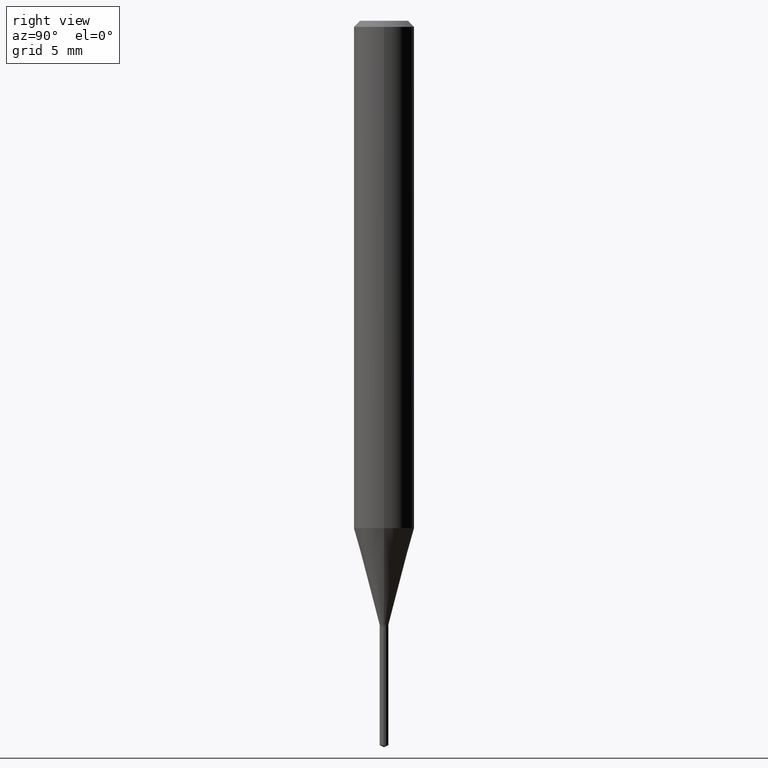
[diagram: clean part render]
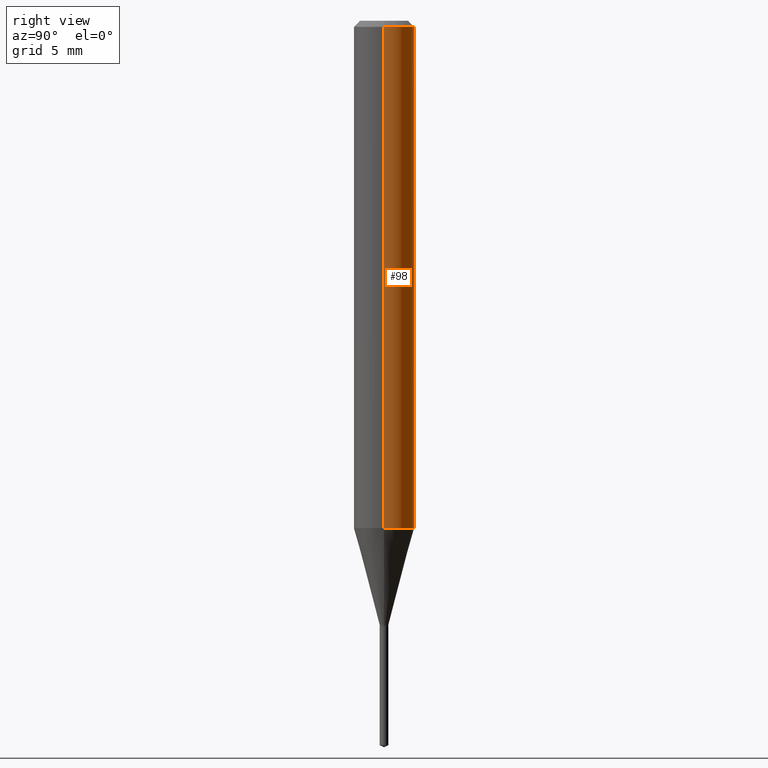
[diagram: same view with one face highlighted and labeled with its STEP entity id]
A machine part, right view. The second image highlights one B-rep face of the part: STEP entity #98.
In plain terms, the highlighted cylindrical surface (edge-blend (fillet) strip) has radius 1.5875 mm, axis along (-0, 0, 1).
Its self-contained STEP definition (entity closure, byte-faithful):
#1 = DIRECTION ( 'NONE',  ( -2.445468806185136877E-29, 3.491481338843145188E-15, 1.000000000000000000 ) ) ;
#8 = ORIENTED_EDGE ( 'NONE', *, *, #24, .F. ) ;
#17 = CARTESIAN_POINT ( 'NONE',  ( 0.06250000000000006939, -4.364351673553921624E-16, 3.047610484872463374E-30 ) ) ;
#19 = CARTESIAN_POINT ( 'NONE',  ( -0.06250000000000013878, -3.213709826451086703E-15, -1.047635281795065154 ) ) ;
#24 = EDGE_CURVE ( 'NONE', #99, #175, #193, .T. ) ;
#29 = CARTESIAN_POINT ( 'NONE',  ( 2.561959401888807010E-29, -3.657799036301150108E-15, -1.047635281795065154 ) ) ;
#38 = CARTESIAN_POINT ( 'NONE',  ( -0.06250000000000006939, 4.440892098500631092E-16, -3.074334431409319267E-30 ) ) ;
#41 = EDGE_CURVE ( 'NONE', #216, #99, #295, .T. ) ;
#60 = DIRECTION ( 'NONE',  ( -2.445468806185136597E-29, 3.491481338843145583E-15, 1.000000000000000000 ) ) ;
#82 = EDGE_CURVE ( 'NONE', #216, #120, #154, .T. ) ;
#98 = ADVANCED_FACE ( 'NONE', ( #404 ), #292, .T. ) ;
#99 = VERTEX_POINT ( 'NONE', #131 ) ;
#112 = CARTESIAN_POINT ( 'NONE',  ( 0.06250000000000013878, -4.094234203656543355E-15, -1.047635281795065154 ) ) ;
#120 = VERTEX_POINT ( 'NONE', #19 ) ;
#131 = CARTESIAN_POINT ( 'NONE',  ( 0.06250000000000000000, -4.800786840909313294E-16, -0.01250000000000008396 ) ) ;
#134 = DIRECTION ( 'NONE',  ( -2.445468806185136877E-29, 3.491481338843145188E-15, 1.000000000000000000 ) ) ;
#154 = CIRCLE ( 'NONE', #470, 0.06250000000000012490 ) ;
#162 = EDGE_LOOP ( 'NONE', ( #279, #174, #8, #426 ) ) ;
#174 = ORIENTED_EDGE ( 'NONE', *, *, #290, .T. ) ;
#175 = VERTEX_POINT ( 'NONE', #343 ) ;
#193 = CIRCLE ( 'NONE', #455, 0.06250000000000000000 ) ;
#216 = VERTEX_POINT ( 'NONE', #112 ) ;
#218 = DIRECTION ( 'NONE',  ( -2.445468806185136597E-29, 3.491481338843145583E-15, 1.000000000000000000 ) ) ;
#258 = DIRECTION ( 'NONE',  ( 1.000000000000000000, -6.982962677686264344E-15, 0.000000000000000000 ) ) ;
#279 = ORIENTED_EDGE ( 'NONE', *, *, #82, .T. ) ;
#290 = EDGE_CURVE ( 'NONE', #120, #175, #490, .T. ) ;
#292 = CYLINDRICAL_SURFACE ( 'NONE', #456, 0.06250000000000006939 ) ;
#295 = LINE ( 'NONE', #17, #309 ) ;
#297 = DIRECTION ( 'NONE',  ( -2.445468806185136597E-29, 3.491481338843145583E-15, 1.000000000000000000 ) ) ;
#309 = VECTOR ( 'NONE', #134, 39.37007874015748143 ) ;
#321 = DIRECTION ( 'NONE',  ( 1.000000000000000000, -6.982962677686266711E-15, 4.876176775795935793E-29 ) ) ;
#343 = CARTESIAN_POINT ( 'NONE',  ( -0.06250000000000000000, -1.406632066668281035E-15, -0.01250000000000008396 ) ) ;
#392 = DIRECTION ( 'NONE',  ( 1.000000000000000000, -6.982962677686266711E-15, 0.000000000000000000 ) ) ;
#404 = FACE_OUTER_BOUND ( 'NONE', #162, .T. ) ;
#408 = VECTOR ( 'NONE', #1, 39.37007874015748143 ) ;
#426 = ORIENTED_EDGE ( 'NONE', *, *, #41, .F. ) ;
#435 = CARTESIAN_POINT ( 'NONE',  ( 3.056836007731441415E-31, -4.364351673553961684E-17, -0.01250000000000008396 ) ) ;
#455 = AXIS2_PLACEMENT_3D ( 'NONE', #435, #218, #392 ) ;
#456 = AXIS2_PLACEMENT_3D ( 'NONE', #484, #297, #321 ) ;
#470 = AXIS2_PLACEMENT_3D ( 'NONE', #29, #60, #258 ) ;
#484 = CARTESIAN_POINT ( 'NONE',  ( 0.000000000000000000, 0.000000000000000000, 0.000000000000000000 ) ) ;
#490 = LINE ( 'NONE', #38, #408 ) ;